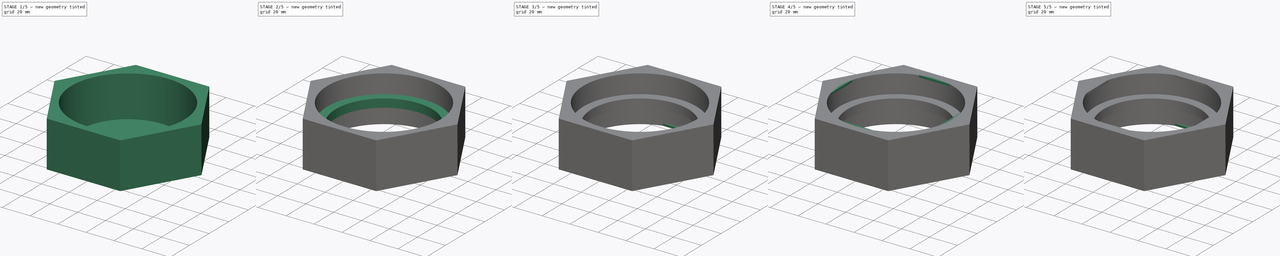
[diagram: build sequence overview — one tinted view per stage of 5, left to right]
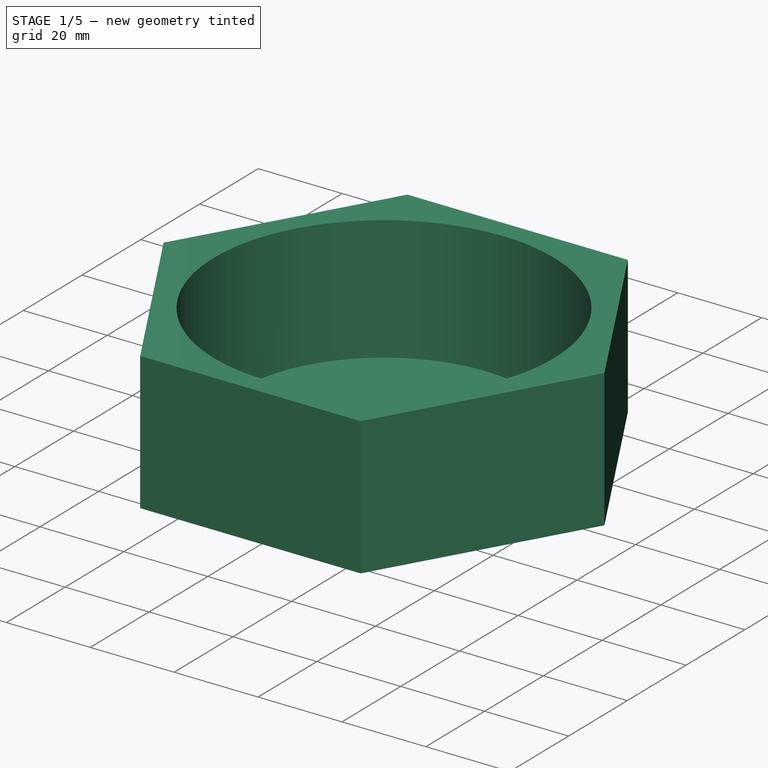
[diagram: stage 1 of 5 — iso view after this stage's code; geometry added in this stage tinted green]
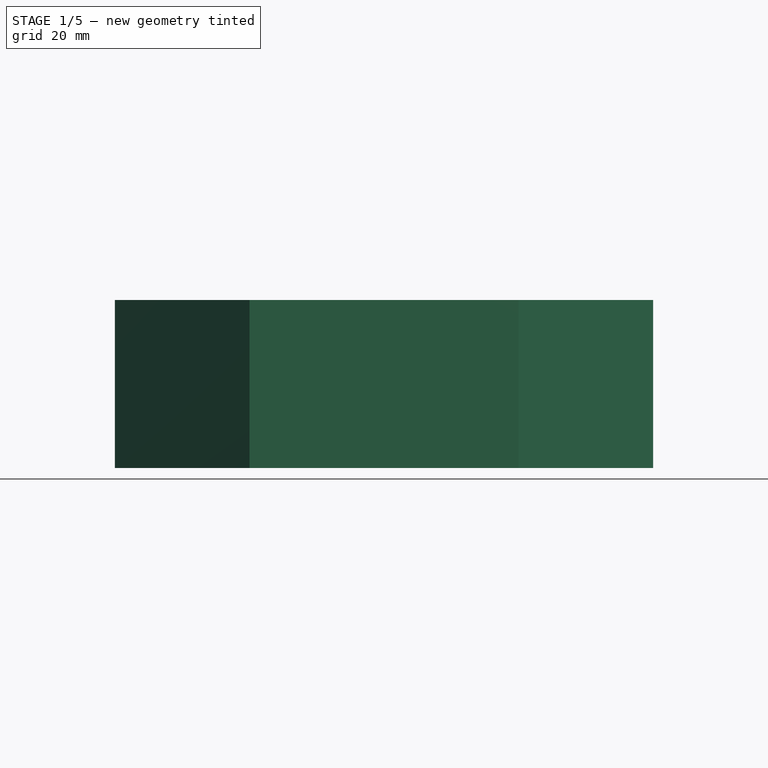
[diagram: stage 1 of 5 — front view after this stage's code; geometry added in this stage tinted green]
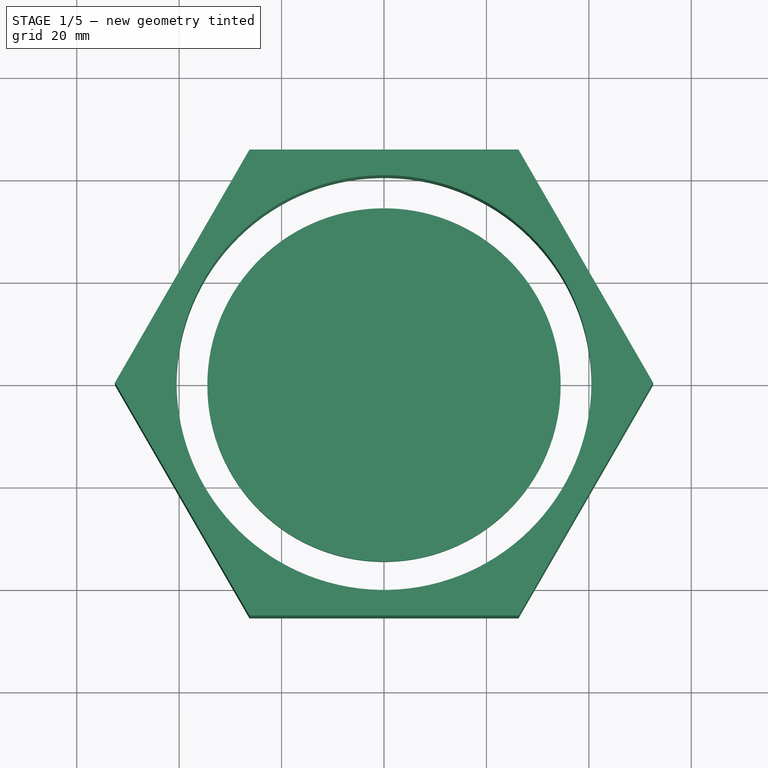
[diagram: stage 1 of 5 — top view after this stage's code; geometry added in this stage tinted green]
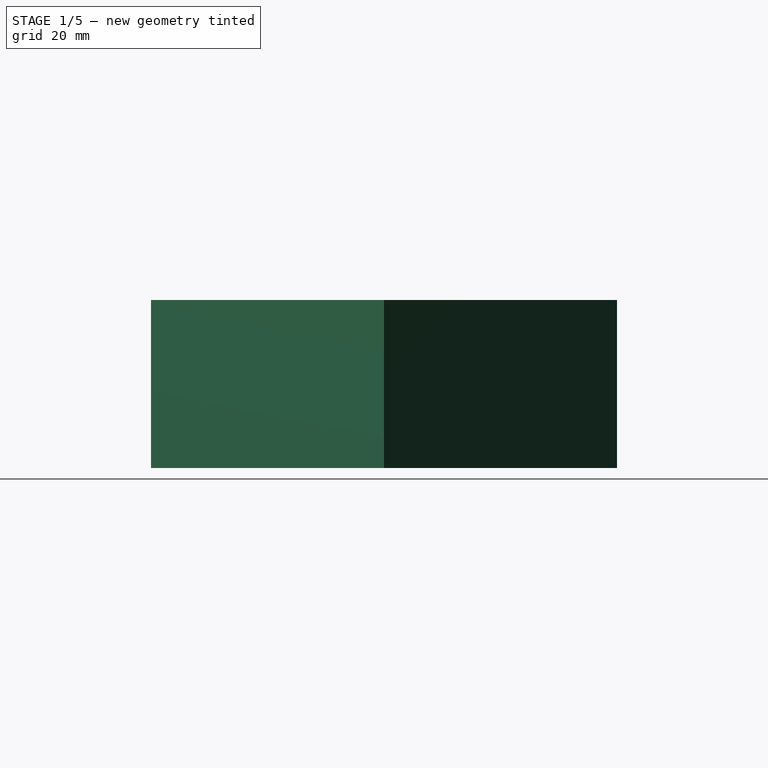
[diagram: stage 1 of 5 — right view after this stage's code; geometry added in this stage tinted green]
FCSTD DOCUMENT  (FreeCAD 0.19R24267 +148 (Git))
Label: TerraLid
License: All rights reserved
LicenseURL: http://en.wikipedia.org/wiki/All_rights_reserved
objects: Sketcher::SketchObject×12, Part::Extrusion×12, Part::Fuse×3, Part::Compound×2, Part::Cut×2, Spreadsheet::Sheet×1, App::Part×1
note: 31 computed .brp shape members not serialized (recipe doc carries the construction recipe); baked Part::Feature solids carry a one-line shape summary decoded from their .brp

FEATURE [Part::Extrusion] Extrude009  label="lid_divider_in_extrude"
  Base = -> Sketch006
  Dir = (0,0,1)
  DirMode = 2
  FaceMakerClass = Part::FaceMakerBullseye
  LengthFwd = 6
  LengthRev = 0
  Solid = true
  Symmetric = false
  expr: LengthFwd = Spreadsheet.jar_lid_divider_height
FEATURE [Part::Extrusion] Extrude010  label="hex_body_extrude"
  Base = -> Sketch
  Dir = (0,0,1)
  DirMode = 2
  FaceMakerClass = Part::FaceMakerBullseye
  LengthFwd = 32.8
  LengthRev = 0
  Solid = true
  Symmetric = false
  expr: LengthFwd = Spreadsheet.body_height
FEATURE [Part::Extrusion] Extrude011  label="lid_extrude"
  Base = -> Sketch001
  Dir = (0,0,1)
  DirMode = 2
  FaceMakerClass = Part::FaceMakerBullseye
  LengthFwd = 32.8
  LengthRev = 0
  Solid = true
  Symmetric = false
  expr: LengthFwd = Spreadsheet.body_height
FEATURE [Part::Cut] Cut001  label="body"
  Base = -> Extrude010
  Tool = -> Extrude011
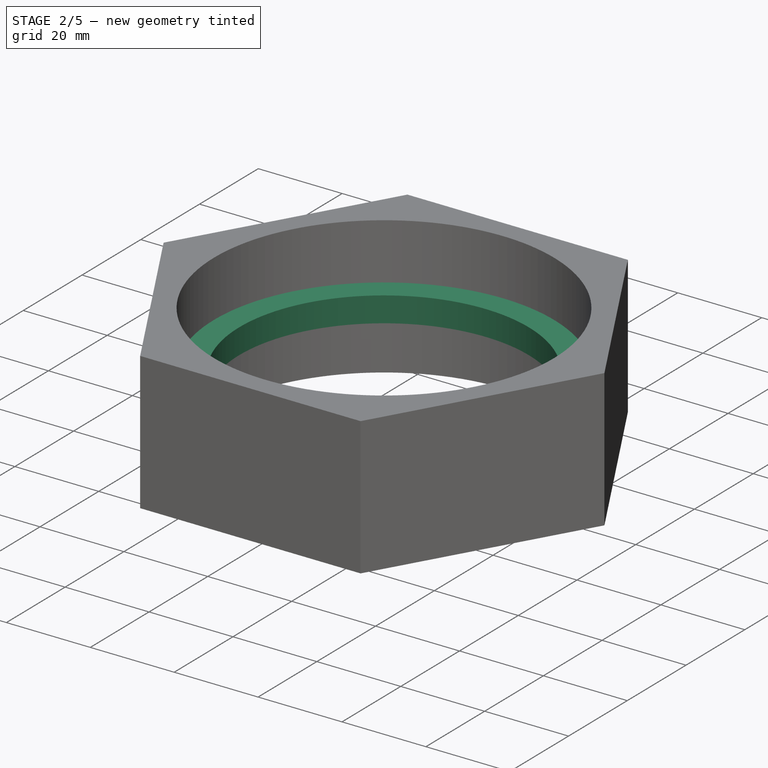
[diagram: stage 2 of 5 — iso view after this stage's code; geometry added in this stage tinted green]
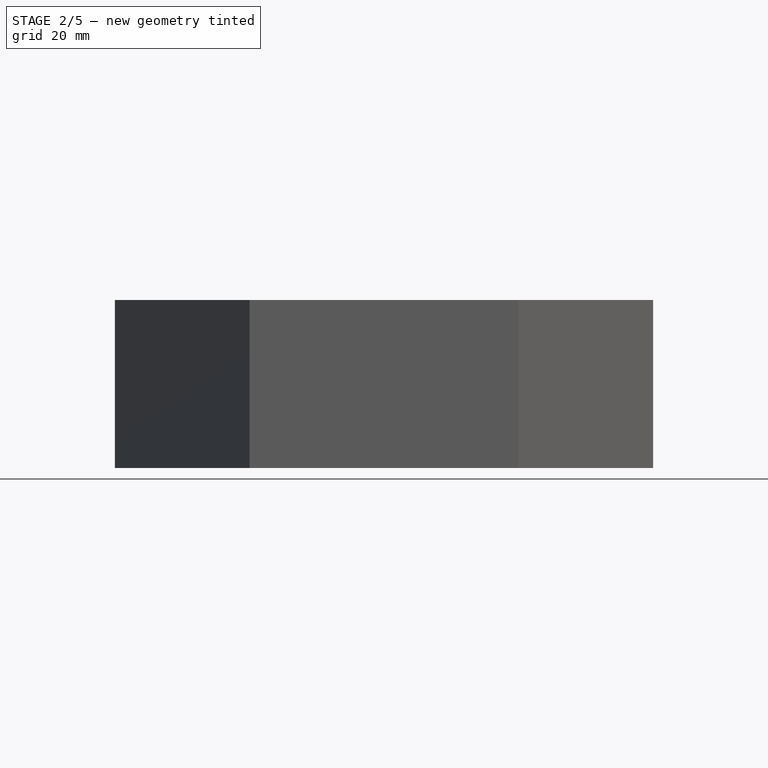
[diagram: stage 2 of 5 — front view after this stage's code; geometry added in this stage tinted green]
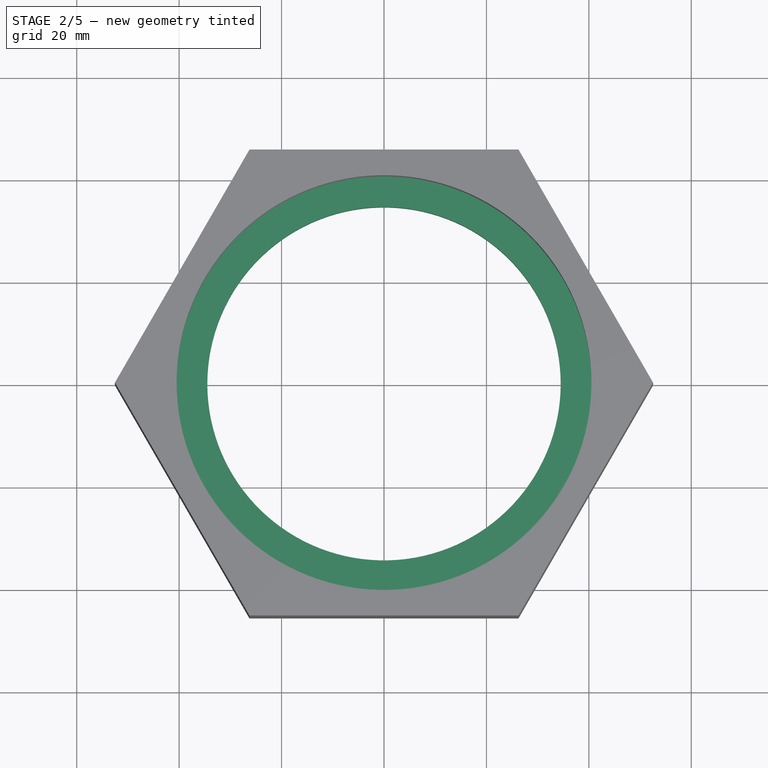
[diagram: stage 2 of 5 — top view after this stage's code; geometry added in this stage tinted green]
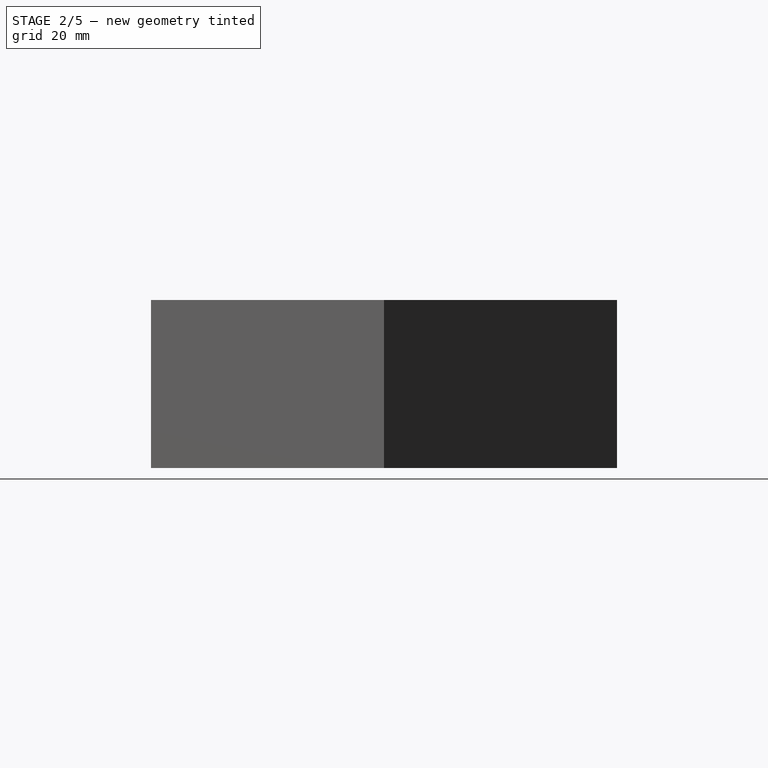
[diagram: stage 2 of 5 — right view after this stage's code; geometry added in this stage tinted green]
FEATURE [Part::Extrusion] Extrude007  label="top_teeth3_extrude"
  Base = -> MirroredSketch005
  Dir = (0,0,1)
  DirMode = 2
  FaceMakerClass = Part::FaceMakerBullseye
  LengthFwd = 1.5
  LengthRev = 0
  Solid = true
  Symmetric = false
  expr: LengthFwd = <<parameters>>.jar_lid_teeth_height
FEATURE [Part::Extrusion] Extrude008  label="lid_divider_out_extrude"
  Base = -> Sketch005
  Dir = (0,0,1)
  DirMode = 2
  FaceMakerClass = Part::FaceMakerBullseye
  LengthFwd = 6
  LengthRev = 0
  Solid = true
  Symmetric = false
  expr: LengthFwd = Spreadsheet.jar_lid_divider_height
FEATURE [Part::Cut] Cut  label="lid_divider"
  Base = -> Extrude008
  Placement = pos=(0,0,13.4) rot=(0,0,1;0rad)
  Tool = -> Extrude009
  expr: .Placement.Base.z = (Spreadsheet.body_height - <<parameters>>.jar_lid_divider_height) / 2
FEATURE [Part::Fuse] Fusion  label="body_divider_fuse"
  Base = -> Cut
  Tool = -> Cut001
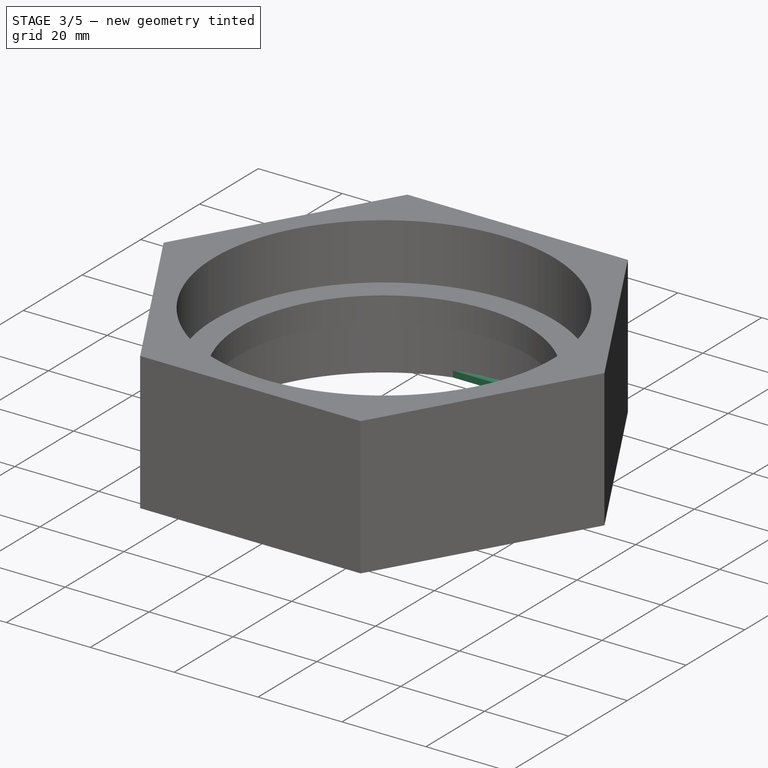
[diagram: stage 3 of 5 — iso view after this stage's code; geometry added in this stage tinted green]
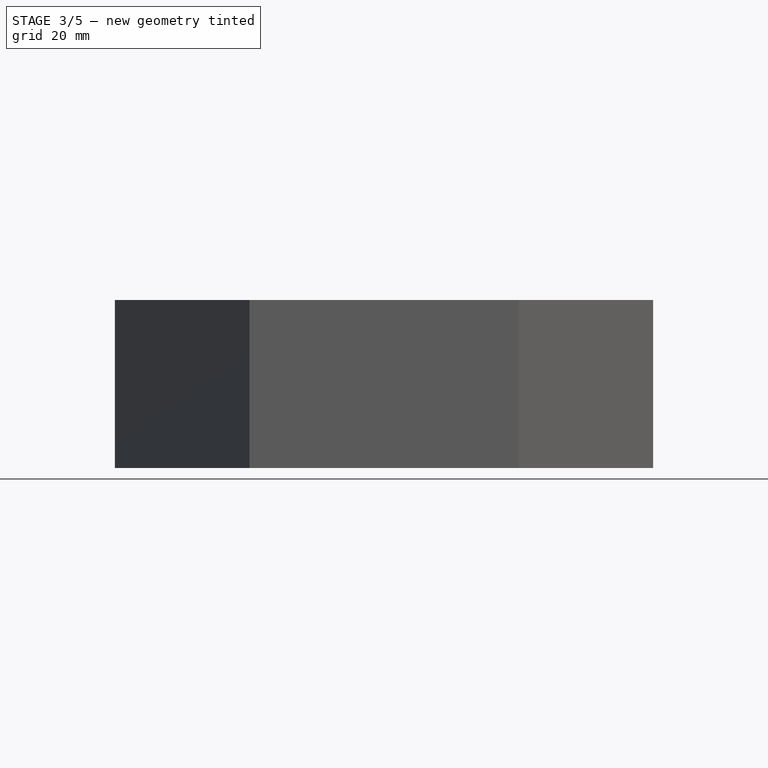
[diagram: stage 3 of 5 — front view after this stage's code; geometry added in this stage tinted green]
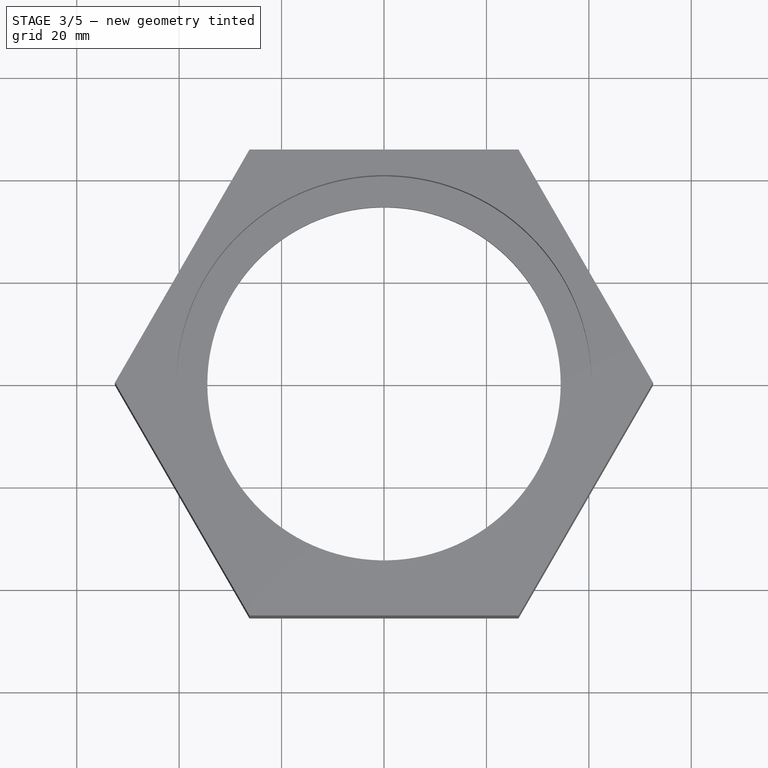
[diagram: stage 3 of 5 — top view after this stage's code; geometry added in this stage tinted green]
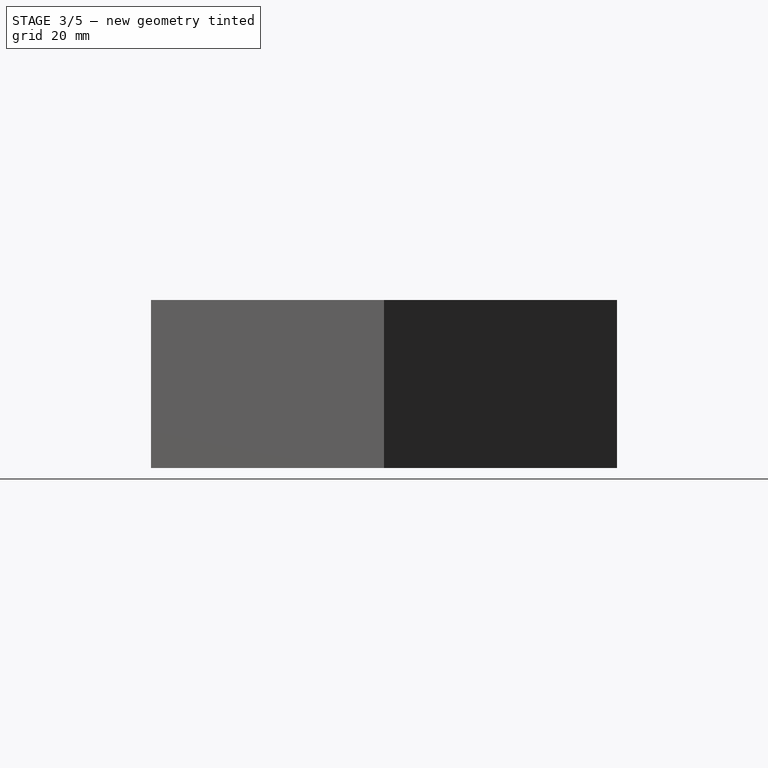
[diagram: stage 3 of 5 — right view after this stage's code; geometry added in this stage tinted green]
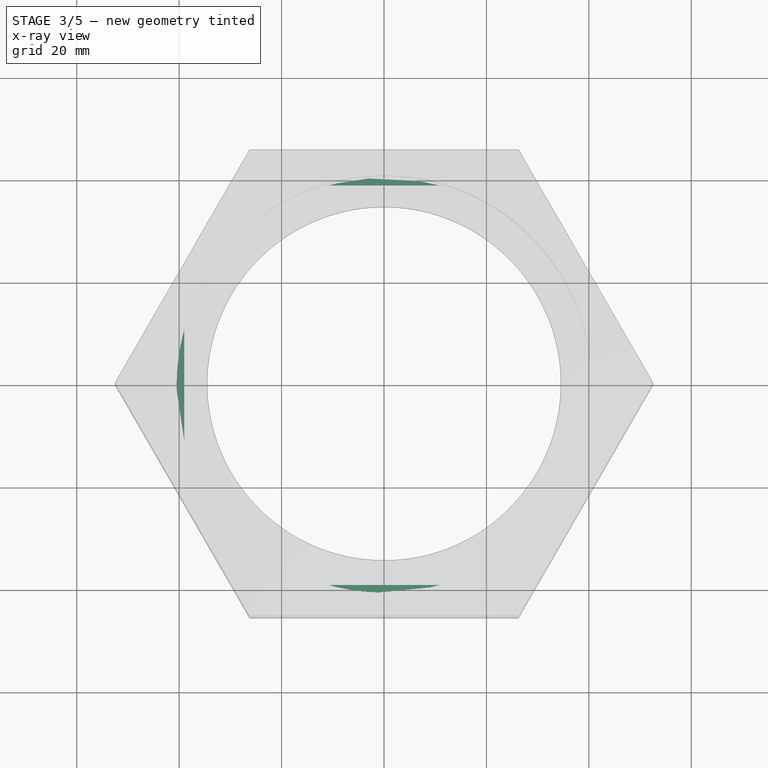
[diagram: stage 3 of 5 — x-ray composite at the top view; earlier geometry ghosted, this stage's added geometry solid]
FEATURE [Part::Extrusion] Extrude004  label="top_teeth0_extrude"
  Base = -> MirroredSketch003
  Dir = (0,0,1)
  DirMode = 2
  FaceMakerClass = Part::FaceMakerBullseye
  LengthFwd = 1.5
  LengthRev = 0
  Solid = true
  Symmetric = false
  expr: LengthFwd = <<parameters>>.jar_lid_teeth_height
FEATURE [Part::Extrusion] Extrude005  label="top_teeth1_extrude"
  Base = -> MirroredSketch004
  Dir = (0,0,1)
  DirMode = 2
  FaceMakerClass = Part::FaceMakerBullseye
  LengthFwd = 1.5
  LengthRev = 0
  Solid = true
  Symmetric = false
  expr: LengthFwd = <<parameters>>.jar_lid_teeth_height
FEATURE [Part::Extrusion] Extrude006  label="top_teeth2_extrude"
  Base = -> Sketch007
  Dir = (0,0,1)
  DirMode = 2
  FaceMakerClass = Part::FaceMakerBullseye
  LengthFwd = 1.5
  LengthRev = 0
  Solid = true
  Symmetric = false
  expr: LengthFwd = <<parameters>>.jar_lid_teeth_height
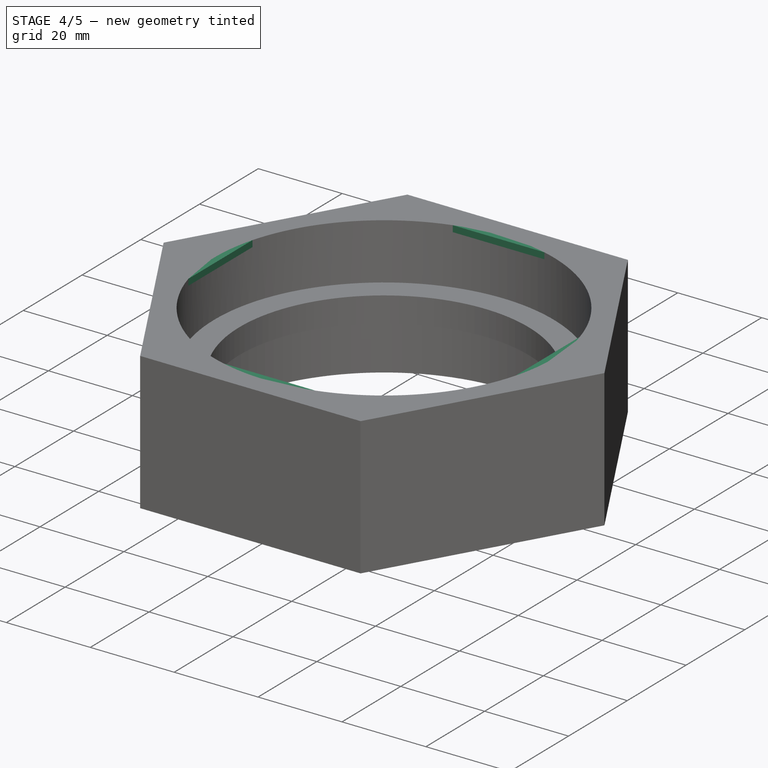
[diagram: stage 4 of 5 — iso view after this stage's code; geometry added in this stage tinted green]
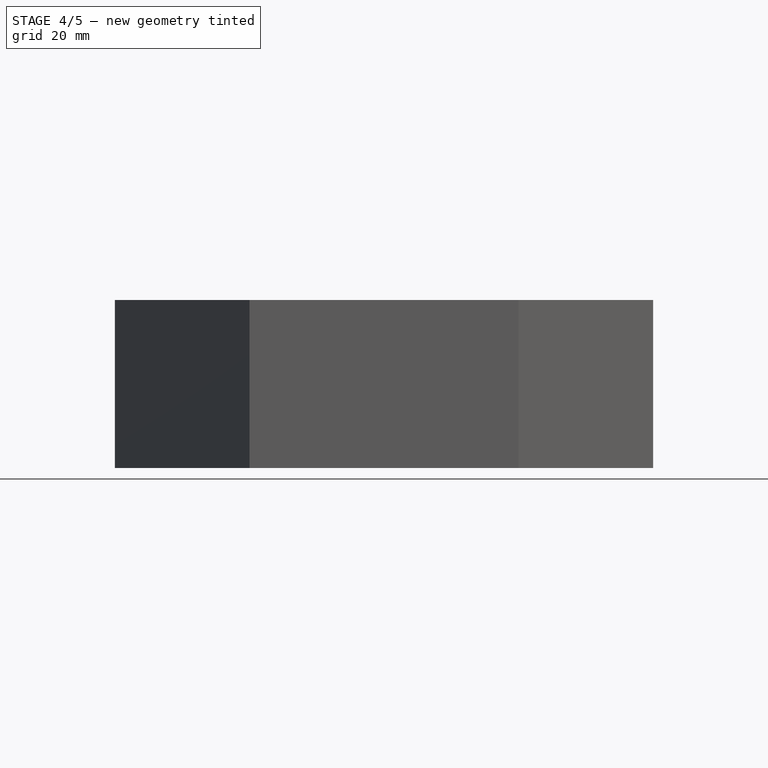
[diagram: stage 4 of 5 — front view after this stage's code; geometry added in this stage tinted green]
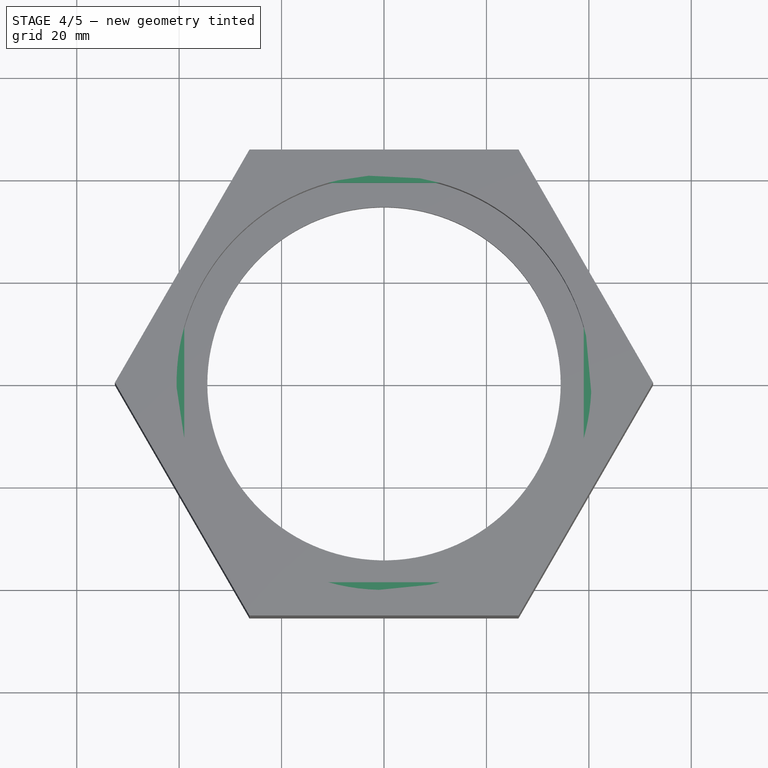
[diagram: stage 4 of 5 — top view after this stage's code; geometry added in this stage tinted green]
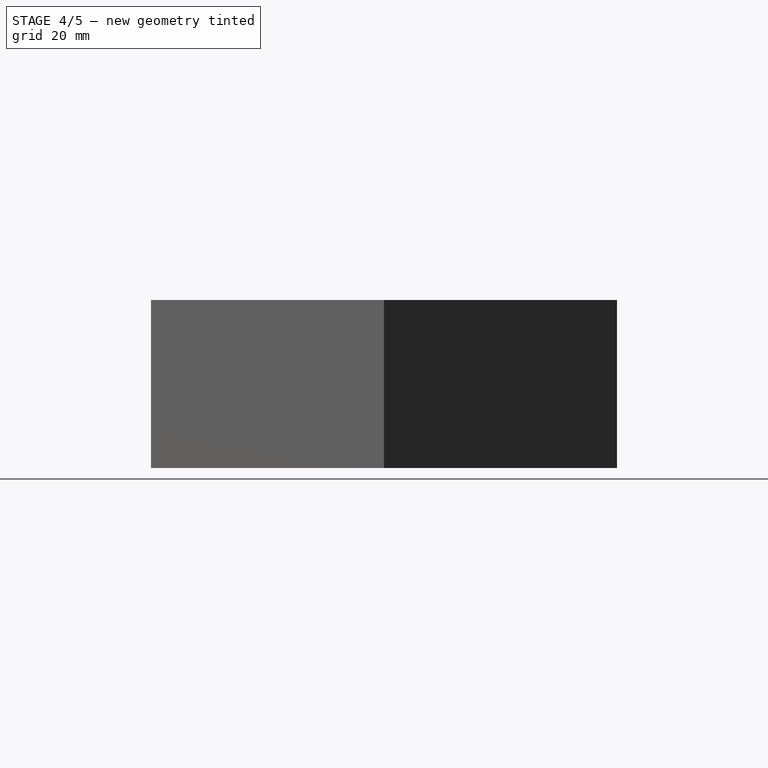
[diagram: stage 4 of 5 — right view after this stage's code; geometry added in this stage tinted green]
FEATURE [Part::Extrusion] Extrude002  label="bottom_teeth2_extrude"
  Base = -> MirroredSketch
  Dir = (0,0,1)
  DirMode = 2
  FaceMakerClass = Part::FaceMakerBullseye
  LengthFwd = 1.5
  LengthRev = 0
  Solid = true
  Symmetric = false
  expr: LengthFwd = <<parameters>>.jar_lid_teeth_height
FEATURE [Part::Extrusion] Extrude003  label="bottom_teeth3_extrude"
  Base = -> Sketch003
  Dir = (0,0,1)
  DirMode = 2
  FaceMakerClass = Part::FaceMakerBullseye
  LengthFwd = 1.5
  LengthRev = 0
  Solid = true
  Symmetric = false
  expr: LengthFwd = <<parameters>>.jar_lid_teeth_height
FEATURE [Part::Compound] Compound001  label="top_teeth_compound"
  Links = -> [Extrude004,Extrude005,Extrude006,Extrude007]
  Placement = pos=(0,0,31.3) rot=(0,0,1;0rad)
  expr: .Placement.Base.z = <<parameters>>.body_height - <<parameters>>.jar_lid_teeth_height
FEATURE [Part::Fuse] Fusion001  label="body_top_teeth_fuse"
  Base = -> Compound001
  Tool = -> Fusion
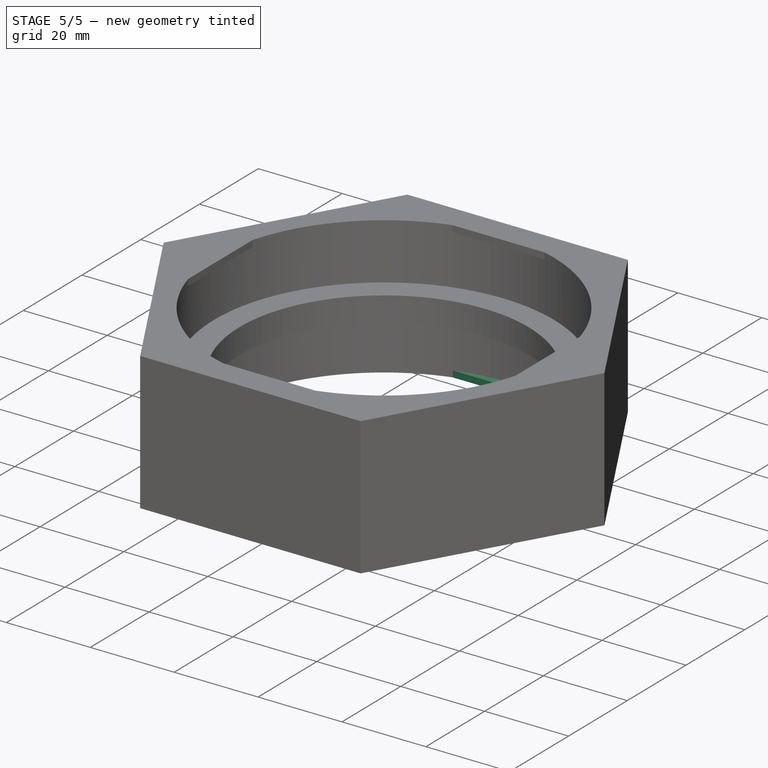
[diagram: stage 5 of 5 — iso view after this stage's code; geometry added in this stage tinted green]
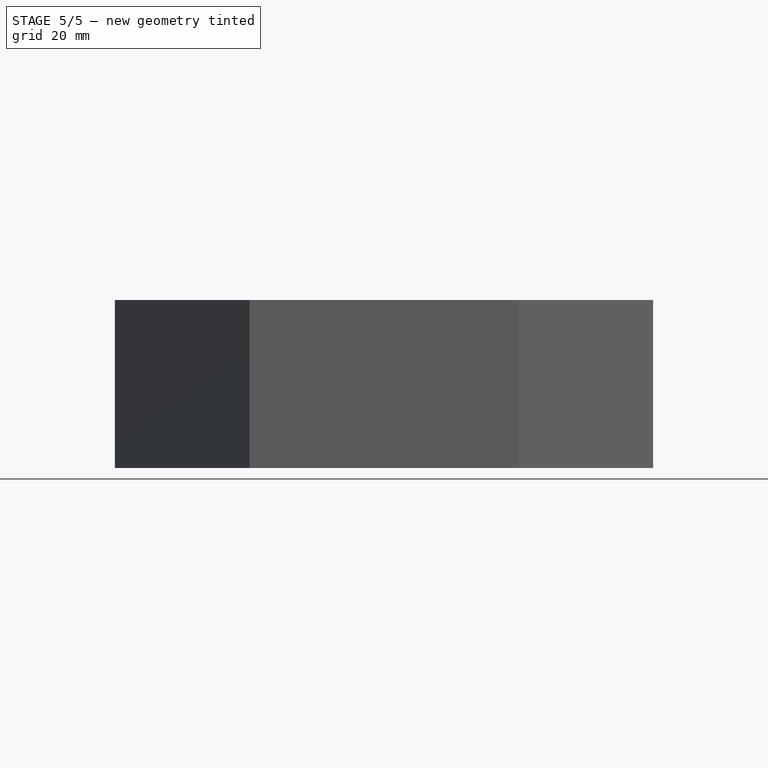
[diagram: stage 5 of 5 — front view after this stage's code; geometry added in this stage tinted green]
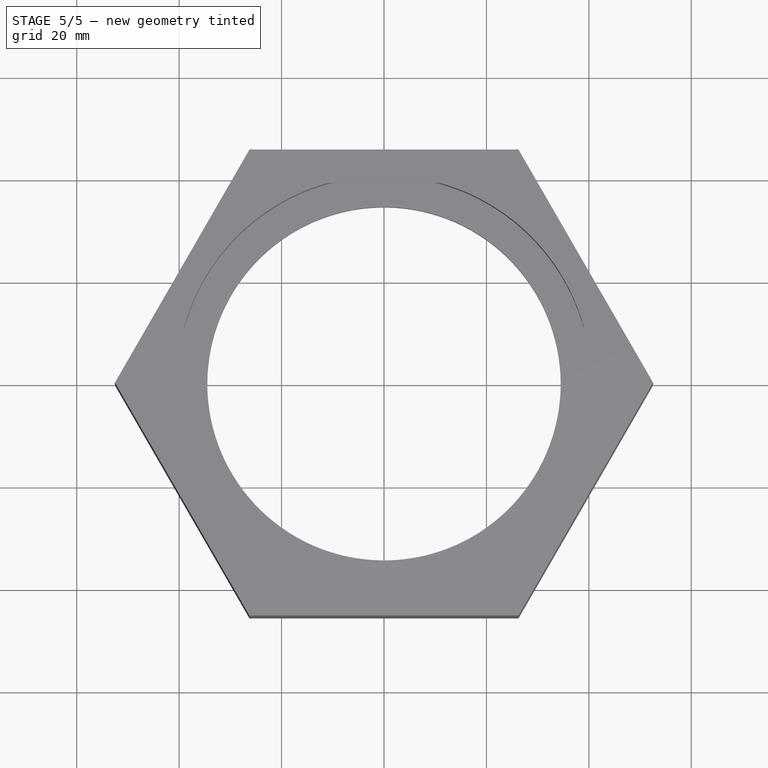
[diagram: stage 5 of 5 — top view after this stage's code; geometry added in this stage tinted green]
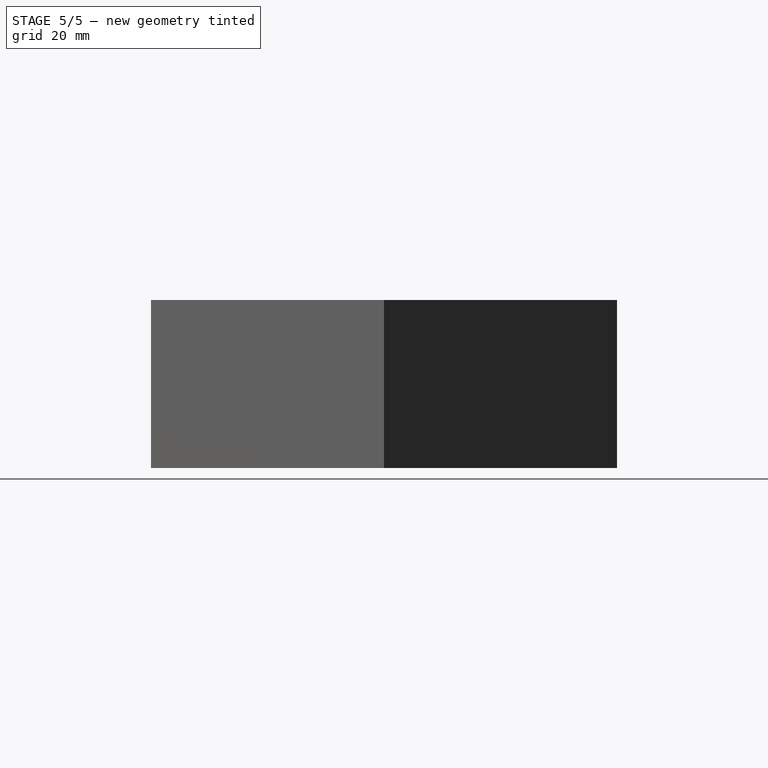
[diagram: stage 5 of 5 — right view after this stage's code; geometry added in this stage tinted green]
FEATURE [Spreadsheet::Sheet] Spreadsheet  label="parameters"
  cells = A1=Variable Parameters; A2=jar_lid_diameter; B2(jar_lid_diameter)==81mm; A4=Design Parameters; A5=jar_lid_divider_width; B5(jar_lid_divider_width)==6mm; A6=jar_lid_divider_height; B6(jar_lid_divider_height)==6mm; A7=jar_lid_teeth; B7(jar_lid_teeth)==1.5mm; A8=jar_lid_teeth_height; B8(jar_lid_teeth_height)==1.5mm; A9=hexagon_meat; B9(hexagon_meat)==5mm; A10=hexagon_radius; B10(hexagon_radius)==(jar_lid_diameter / 2 + hexagon_meat) / 0.866; A11=body_height; B11(body_height)==13.4mm * 2 + jar_lid_divider_height
FEATURE [Sketcher::SketchObject] Sketch  label="hex_body"
  FullyConstrained = true
  expr: Constraints[19] = <<parameters>>.hexagon_radius
  sketch-geometry (7):
    g0: LineSegment StartX=52.5404 StartY=0 StartZ=0 EndX=26.2702 EndY=45.5013 EndZ=0
    g1: LineSegment StartX=26.2702 StartY=45.5013 StartZ=0 EndX=-26.2702 EndY=45.5013 EndZ=0
    g2: LineSegment StartX=-26.2702 StartY=45.5013 StartZ=0 EndX=-52.5404 EndY=7.1e-15 EndZ=0
    g3: LineSegment StartX=-52.5404 StartY=7.1e-15 StartZ=0 EndX=-26.2702 EndY=-45.5013 EndZ=0
    g4: LineSegment StartX=-26.2702 StartY=-45.5013 StartZ=0 EndX=26.2702 EndY=-45.5013 EndZ=0
    g5: LineSegment StartX=26.2702 StartY=-45.5013 StartZ=0 EndX=52.5404 EndY=0 EndZ=0
    g6: Circle CenterX=0 CenterY=0 CenterZ=0 NormalX=0 NormalY=0 NormalZ=1 AngleXU=0 Radius=52.5404
  constraints (16):
    c: Coincident(g0,g1)
    c: Coincident(g1,g2)
    c: Coincident(g2,g3)
    c: Coincident(g3,g4)
    c: Coincident(g4,g5)
    c: Coincident(g5,g0)
    c: Equal(g0, g1-g5) x5
    c: PointOnObject(g0,g6)
    c: PointOnObject(g1,g6)
    c: PointOnObject(g2,g6)
    c: PointOnObject(g3,g6)
    c: PointOnObject(g4,g6)
    c: PointOnObject(g5,g6)
    c: Coincident(g6,g-1)
    c: PointOnObject(g0,g-1)
    c: DistanceX(g-1,g0) = 52.5404
FEATURE [Sketcher::SketchObject] Sketch001  label="lid_inside"
  FullyConstrained = true
  MapMode = 2
  Support = -> [Sketch]
  expr: Constraints[1] = <<parameters>>.jar_lid_diameter / 2
  sketch-geometry (1):
    g0: Circle CenterX=0 CenterY=0 CenterZ=0 NormalX=0 NormalY=0 NormalZ=1 AngleXU=0 Radius=40.5
  constraints (2):
    c: Coincident(g0,g-1)
    c: Radius(g0) = 40.5
FEATURE [Sketcher::SketchObject] MirroredSketch001  label="bottom_teeth2"
  FullyConstrained = false
  sketch-geometry (4):
    g0: LineSegment StartX=39 StartY=-10.9202 StartZ=0 EndX=39 EndY=10.9202 EndZ=0
    g1: GeomPoint X=39 Y=0 Z=0
    g2: ArcOfCircle CenterX=0 CenterY=0 CenterZ=0 NormalX=0 NormalY=0 NormalZ=1 AngleXU=0 Radius=40.5 StartAngle=6.01017 EndAngle=6.5562
    g3: GeomPoint X=40.5 Y=0 Z=0
  constraints (4):
    c: Vertical(g0)
    c: PointOnObject(g1,g0)
    c: Coincident(g2,g0)
    c: Coincident(g2,g0)
FEATURE [Sketcher::SketchObject] MirroredSketch002  label="bottom_teeth3"
  FullyConstrained = false
  sketch-geometry (4):
    g0: GeomPoint X=0 Y=40.5 Z=0
    g1: LineSegment StartX=-10.9202 StartY=39 StartZ=0 EndX=10.9202 EndY=39 EndZ=0
    g2: GeomPoint X=0 Y=39 Z=0
    g3: ArcOfCircle CenterX=-1.5e-15 CenterY=1.63e-14 CenterZ=0 NormalX=0 NormalY=0 NormalZ=1 AngleXU=0 Radius=40.5 StartAngle=1.29778 EndAngle=1.84381
  constraints (5):
    c: Horizontal(g1)
    c: PointOnObject(g2,g1)
    c: Coincident(g3,g1)
    c: Coincident(g3,g1)
    c: PointOnObject(g0,g3)
FEATURE [Sketcher::SketchObject] MirroredSketch  label="bottom_teeth1"
  FullyConstrained = false
  sketch-geometry (4):
    g0: GeomPoint X=0 Y=-40.5 Z=0
    g1: LineSegment StartX=10.9202 StartY=-39 StartZ=0 EndX=-10.9202 EndY=-39 EndZ=0
    g2: GeomPoint X=0 Y=-39 Z=0
    g3: ArcOfCircle CenterX=1.5e-15 CenterY=-1.63e-14 CenterZ=0 NormalX=0 NormalY=0 NormalZ=1 AngleXU=0 Radius=40.5 StartAngle=4.43938 EndAngle=4.9854
  constraints (5):
    c: Horizontal(g1)
    c: PointOnObject(g2,g1)
    c: Coincident(g3,g1)
    c: Coincident(g3,g1)
    c: PointOnObject(g0,g3)
FEATURE [Sketcher::SketchObject] Sketch003  label="bottom_teeth0"
  ExternalGeometry = -> [Sketch001]
  FullyConstrained = true
  expr: Constraints[9] = <<parameters>>.jar_lid_teeth
  sketch-geometry (4):
    g0: LineSegment StartX=-39 StartY=10.9202 StartZ=0 EndX=-39 EndY=-10.9202 EndZ=0
    g1: GeomPoint X=-39 Y=0 Z=0
    g2: ArcOfCircle CenterX=0 CenterY=0 CenterZ=0 NormalX=0 NormalY=0 NormalZ=1 AngleXU=0 Radius=40.5 StartAngle=2.86858 EndAngle=3.41461
    g3: GeomPoint X=-40.5 Y=0 Z=0
  constraints (10):
    c: PointOnObject(g0,g-3)
    c: Vertical(g0)
    c: PointOnObject(g1,g0)
    c: PointOnObject(g1,g-1)
    c: Coincident(g2,g-1)
    c: Coincident(g2,g0)
    c: Coincident(g2,g0)
    c: PointOnObject(g3,g-3)
    c: PointOnObject(g3,g-1)
    c: DistanceX(g3,g1) = 1.5
FEATURE [Sketcher::SketchObject] Sketch005  label="lid_divider_out"
  FullyConstrained = true
  MapMode = 2
  expr: Constraints[1] = <<parameters>>.jar_lid_diameter / 2
  sketch-geometry (1):
    g0: Circle CenterX=0 CenterY=0 CenterZ=0 NormalX=0 NormalY=0 NormalZ=1 AngleXU=0 Radius=40.5
  constraints (2):
    c: Coincident(g0,g-1)
    c: Radius(g0) = 40.5
FEATURE [Sketcher::SketchObject] Sketch006  label="lid_divider_in"
  FullyConstrained = true
  MapMode = 2
  expr: Constraints[1] = <<parameters>>.jar_lid_diameter / 2 - <<parameters>>.jar_lid_divider_width
  sketch-geometry (1):
    g0: Circle CenterX=0 CenterY=0 CenterZ=0 NormalX=0 NormalY=0 NormalZ=1 AngleXU=0 Radius=34.5
  constraints (2):
    c: Coincident(g0,g-1)
    c: Radius(g0) = 34.5
FEATURE [Sketcher::SketchObject] MirroredSketch003  label="top_teeth0"
  FullyConstrained = false
  sketch-geometry (4):
    g0: GeomPoint X=0 Y=40.5 Z=0
    g1: LineSegment StartX=-10.9202 StartY=39 StartZ=0 EndX=10.9202 EndY=39 EndZ=0
    g2: GeomPoint X=0 Y=39 Z=0
    g3: ArcOfCircle CenterX=-1.5e-15 CenterY=1.63e-14 CenterZ=0 NormalX=0 NormalY=0 NormalZ=1 AngleXU=0 Radius=40.5 StartAngle=1.29778 EndAngle=1.84381
  constraints (5):
    c: Horizontal(g1)
    c: PointOnObject(g2,g1)
    c: Coincident(g3,g1)
    c: Coincident(g3,g1)
    c: PointOnObject(g0,g3)
FEATURE [Sketcher::SketchObject] MirroredSketch004  label="top_teeth1"
  FullyConstrained = false
  sketch-geometry (4):
    g0: GeomPoint X=0 Y=-40.5 Z=0
    g1: LineSegment StartX=10.9202 StartY=-39 StartZ=0 EndX=-10.9202 EndY=-39 EndZ=0
    g2: GeomPoint X=0 Y=-39 Z=0
    g3: ArcOfCircle CenterX=1.5e-15 CenterY=-1.63e-14 CenterZ=0 NormalX=0 NormalY=0 NormalZ=1 AngleXU=0 Radius=40.5 StartAngle=4.43938 EndAngle=4.9854
  constraints (5):
    c: Horizontal(g1)
    c: PointOnObject(g2,g1)
    c: Coincident(g3,g1)
    c: Coincident(g3,g1)
    c: PointOnObject(g0,g3)
FEATURE [Sketcher::SketchObject] Sketch007  label="top_teeth2"
  FullyConstrained = false
  expr: Constraints[7] = <<parameters>>.jar_lid_teeth
  sketch-geometry (4):
    g0: LineSegment StartX=-39 StartY=10.9202 StartZ=0 EndX=-39 EndY=-10.9202 EndZ=0
    g1: GeomPoint X=-39 Y=0 Z=0
    g2: ArcOfCircle CenterX=0 CenterY=0 CenterZ=0 NormalX=0 NormalY=0 NormalZ=1 AngleXU=0 Radius=40.5 StartAngle=2.86858 EndAngle=3.41461
    g3: GeomPoint X=-40.5 Y=0 Z=0
  constraints (8):
    c: Vertical(g0)
    c: PointOnObject(g1,g0)
    c: PointOnObject(g1,g-1)
    c: Coincident(g2,g-1)
    c: Coincident(g2,g0)
    c: Coincident(g2,g0)
    c: PointOnObject(g3,g-1)
    c: DistanceX(g3,g1) = 1.5
FEATURE [Sketcher::SketchObject] MirroredSketch005  label="top_teeth3"
  FullyConstrained = false
  sketch-geometry (4):
    g0: LineSegment StartX=39 StartY=-10.9202 StartZ=0 EndX=39 EndY=10.9202 EndZ=0
    g1: GeomPoint X=39 Y=0 Z=0
    g2: ArcOfCircle CenterX=0 CenterY=0 CenterZ=0 NormalX=0 NormalY=0 NormalZ=1 AngleXU=0 Radius=40.5 StartAngle=6.01017 EndAngle=6.5562
    g3: GeomPoint X=40.5 Y=0 Z=0
  constraints (4):
    c: Vertical(g0)
    c: PointOnObject(g1,g0)
    c: Coincident(g2,g0)
    c: Coincident(g2,g0)
FEATURE [Part::Extrusion] Extrude  label="bottom_teeth0_extrude"
  Base = -> MirroredSketch001
  Dir = (0,0,1)
  DirMode = 2
  FaceMakerClass = Part::FaceMakerBullseye
  LengthFwd = 1.5
  LengthRev = 0
  Solid = true
  Symmetric = false
  expr: LengthFwd = <<parameters>>.jar_lid_teeth_height
FEATURE [Part::Extrusion] Extrude001  label="bottom_teeth1_extrude"
  Base = -> MirroredSketch002
  Dir = (0,0,1)
  DirMode = 2
  FaceMakerClass = Part::FaceMakerBullseye
  LengthFwd = 1.5
  LengthRev = 0
  Solid = true
  Symmetric = false
  expr: LengthFwd = <<parameters>>.jar_lid_teeth_height
FEATURE [Part::Compound] Compound  label="bottom_teeth_compound"
  Links = -> [Extrude,Extrude001,Extrude002,Extrude003]
FEATURE [Part::Fuse] Fusion002  label="body_bottom_teeth_fuse"
  Base = -> Compound
  Tool = -> Fusion001
FEATURE [App::Part] Part  label="TerraLid"
  Group = -> [Compound,Extrude004,Cut,Cut001,Sketch005,MirroredSketch004,Sketch006,MirroredSketch003,Sketch007,MirroredSketch005,Extrude002,Extrude,Extrude001,Extrude003,Compound001,Extrude007,Extrude011,Extrude009,Extrude005,Extrude006,Extrude008,Extrude010,Fusion,Fusion001,MirroredSketch002,MirroredSketch,Sketch003,Sketch001,Sketch,MirroredSketch001,Fusion002]
  Origin = -> Origin
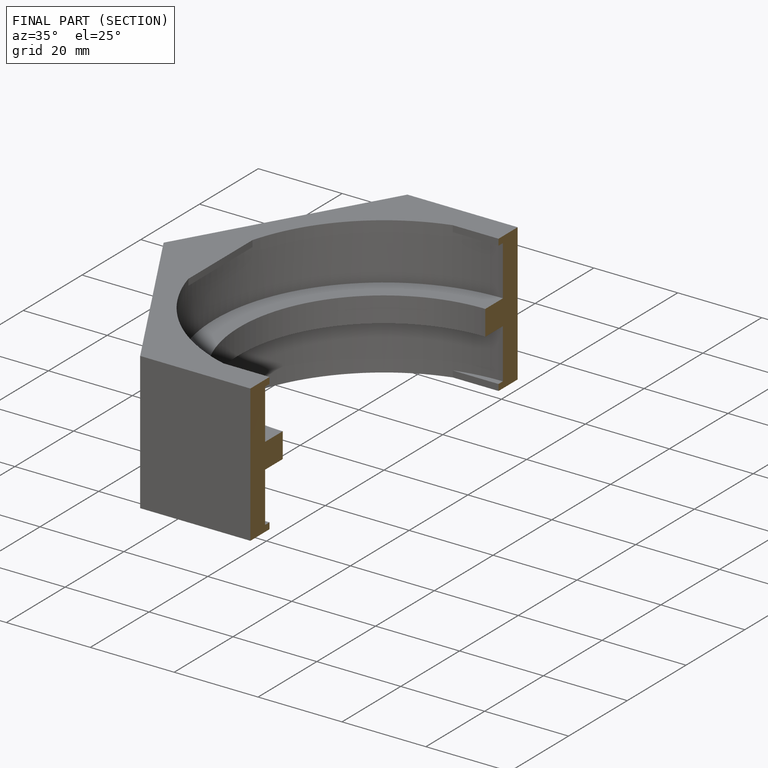
[diagram: finished part — half-section view (interior)]
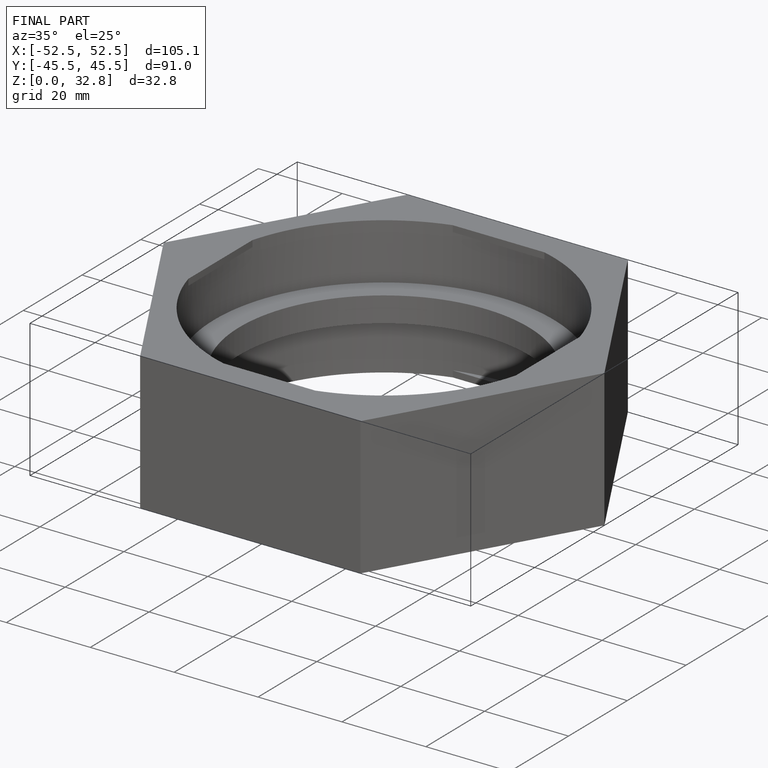
[diagram: finished part — iso view with bounding-box wireframe]
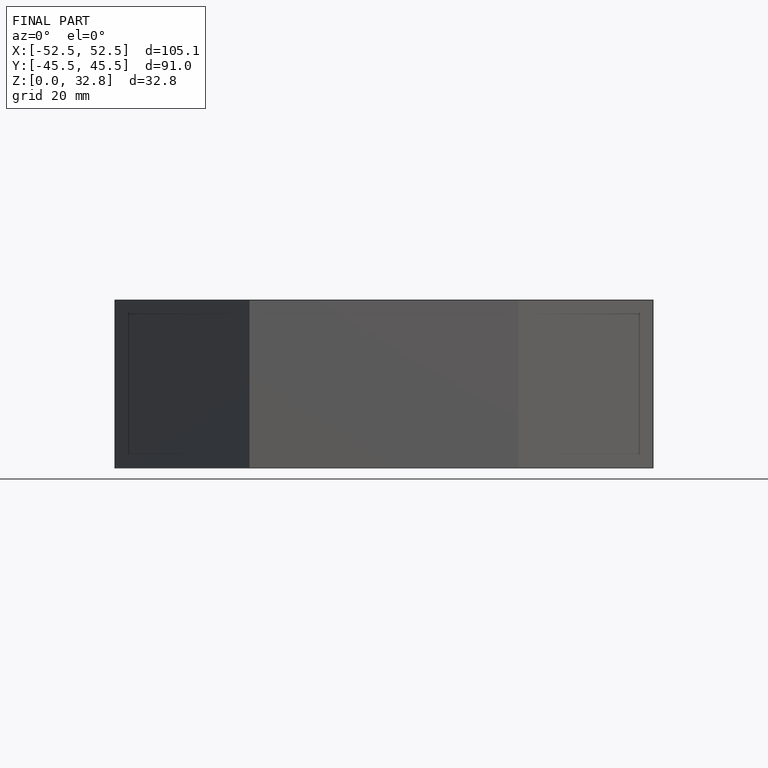
[diagram: finished part — front view with bounding-box wireframe]
